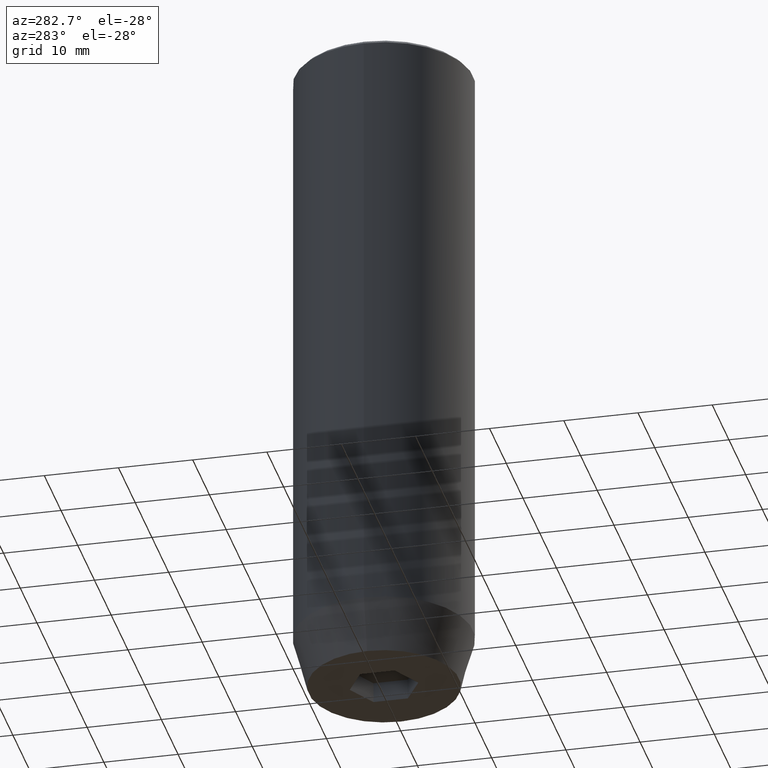
[diagram: clean part render]
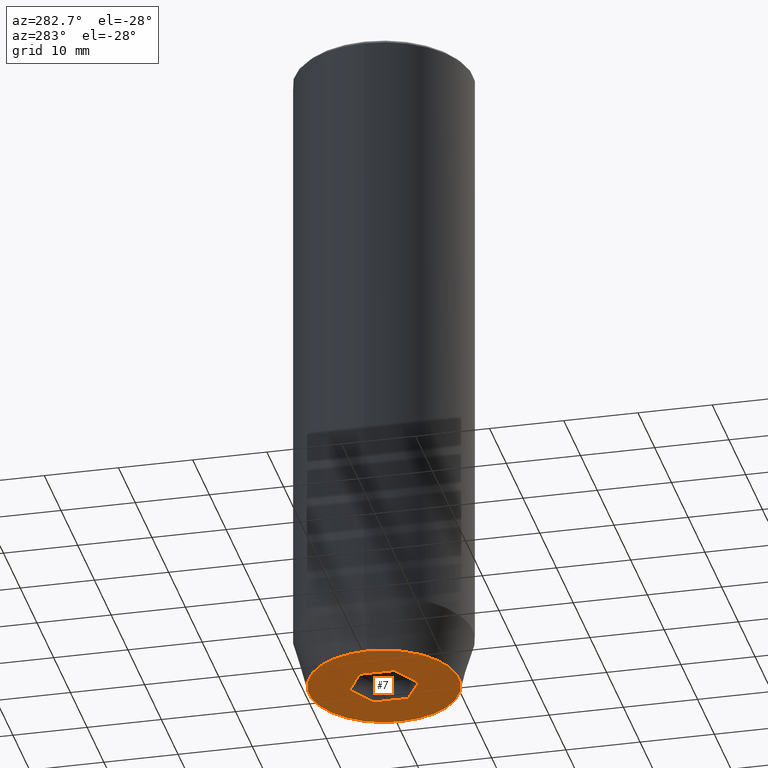
[diagram: same view with one face highlighted and labeled with its STEP entity id]
A machine part, auxiliary view. The second image highlights one B-rep face of the part: STEP entity #7.
In plain terms, the highlighted planar face has unit normal (0, 0, -1).
Its self-contained STEP definition (entity closure, byte-faithful):
#7 = ADVANCED_FACE ( 'NONE', ( #328, #155 ), #246, .T. ) ;
#10 = VECTOR ( 'NONE', #115, 1000.000000000000114 ) ;
#13 = EDGE_CURVE ( 'NONE', #583, #310, #120, .T. ) ;
#15 = CARTESIAN_POINT ( 'NONE',  ( 4.000000000000000000, 0.000000000000000000, -90.00000000000000000 ) ) ;
#18 = CIRCLE ( 'NONE', #284, 10.12435565298213547 ) ;
#20 = CARTESIAN_POINT ( 'NONE',  ( 0.000000000000000000, 10.12435565298213547, -90.00000000000000000 ) ) ;
#25 = DIRECTION ( 'NONE',  ( -1.000000000000000000, 0.000000000000000000, -0.000000000000000000 ) ) ;
#28 = CARTESIAN_POINT ( 'NONE',  ( -10.12435565298213547, 1.354726066681111050E-15, -90.00000000000000000 ) ) ;
#39 = EDGE_LOOP ( 'NONE', ( #526, #498, #96, #42, #451, #587 ) ) ;
#42 = ORIENTED_EDGE ( 'NONE', *, *, #46, .F. ) ;
#43 = CIRCLE ( 'NONE', #317, 10.12435565298213547 ) ;
#46 = EDGE_CURVE ( 'NONE', #310, #357, #335, .T. ) ;
#67 = CARTESIAN_POINT ( 'NONE',  ( 0.000000000000000000, 0.000000000000000000, -90.00000000000000000 ) ) ;
#69 = VECTOR ( 'NONE', #519, 1000.000000000000000 ) ;
#95 = CARTESIAN_POINT ( 'NONE',  ( 4.000000000000000000, 2.309401076758503368, -90.00000000000000000 ) ) ;
#96 = ORIENTED_EDGE ( 'NONE', *, *, #563, .F. ) ;
#102 = VERTEX_POINT ( 'NONE', #244 ) ;
#115 = DIRECTION ( 'NONE',  ( -0.8660254037844384856, -0.5000000000000002220, 0.000000000000000000 ) ) ;
#120 = LINE ( 'NONE', #15, #69 ) ;
#142 = VECTOR ( 'NONE', #483, 1000.000000000000000 ) ;
#153 = AXIS2_PLACEMENT_3D ( 'NONE', #20, #564, #25 ) ;
#155 = FACE_OUTER_BOUND ( 'NONE', #518, .T. ) ;
#156 = EDGE_CURVE ( 'NONE', #273, #478, #585, .T. ) ;
#161 = DIRECTION ( 'NONE',  ( 0.8660254037844387076, 0.5000000000000001110, 0.000000000000000000 ) ) ;
#174 = DIRECTION ( 'NONE',  ( 1.000000000000000000, 0.000000000000000000, 0.000000000000000000 ) ) ;
#180 = CARTESIAN_POINT ( 'NONE',  ( 2.000000000000000444, 3.464101615137754386, -90.00000000000000000 ) ) ;
#181 = CARTESIAN_POINT ( 'NONE',  ( -2.000000000000000888, -3.464101615137754386, -90.00000000000000000 ) ) ;
#191 = VERTEX_POINT ( 'NONE', #28 ) ;
#195 = EDGE_CURVE ( 'NONE', #102, #583, #486, .T. ) ;
#197 = CARTESIAN_POINT ( 'NONE',  ( 4.000000000000000000, -2.309401076758502480, -90.00000000000000000 ) ) ;
#202 = DIRECTION ( 'NONE',  ( -0.000000000000000000, -0.000000000000000000, 1.000000000000000000 ) ) ;
#220 = CARTESIAN_POINT ( 'NONE',  ( 0.000000000000000000, 0.000000000000000000, -90.00000000000000000 ) ) ;
#242 = VECTOR ( 'NONE', #446, 1000.000000000000114 ) ;
#244 = CARTESIAN_POINT ( 'NONE',  ( 0.000000000000000000, 4.618802153517006737, -90.00000000000000000 ) ) ;
#246 = PLANE ( 'NONE',  #153 ) ;
#247 = LINE ( 'NONE', #388, #343 ) ;
#255 = CARTESIAN_POINT ( 'NONE',  ( 10.12435565298213547, 0.000000000000000000, -90.00000000000000000 ) ) ;
#263 = CARTESIAN_POINT ( 'NONE',  ( -4.000000000000000000, -2.309401076758503368, -90.00000000000000000 ) ) ;
#273 = VERTEX_POINT ( 'NONE', #263 ) ;
#276 = EDGE_CURVE ( 'NONE', #569, #191, #18, .T. ) ;
#284 = AXIS2_PLACEMENT_3D ( 'NONE', #220, #398, #174 ) ;
#308 = DIRECTION ( 'NONE',  ( 0.000000000000000000, 1.000000000000000000, 0.000000000000000000 ) ) ;
#309 = CARTESIAN_POINT ( 'NONE',  ( -4.000000000000000000, 2.309401076758503368, -90.00000000000000000 ) ) ;
#310 = VERTEX_POINT ( 'NONE', #197 ) ;
#317 = AXIS2_PLACEMENT_3D ( 'NONE', #67, #202, #566 ) ;
#324 = EDGE_CURVE ( 'NONE', #478, #102, #247, .T. ) ;
#328 = FACE_BOUND ( 'NONE', #39, .T. ) ;
#335 = LINE ( 'NONE', #560, #10 ) ;
#343 = VECTOR ( 'NONE', #161, 999.9999999999998863 ) ;
#346 = CARTESIAN_POINT ( 'NONE',  ( -4.000000000000000000, 0.000000000000000000, -90.00000000000000000 ) ) ;
#357 = VERTEX_POINT ( 'NONE', #479 ) ;
#381 = EDGE_CURVE ( 'NONE', #191, #569, #43, .T. ) ;
#388 = CARTESIAN_POINT ( 'NONE',  ( -2.000000000000000000, 3.464101615137754830, -90.00000000000000000 ) ) ;
#398 = DIRECTION ( 'NONE',  ( -0.000000000000000000, -0.000000000000000000, 1.000000000000000000 ) ) ;
#446 = DIRECTION ( 'NONE',  ( -0.8660254037844384856, 0.5000000000000002220, 0.000000000000000000 ) ) ;
#451 = ORIENTED_EDGE ( 'NONE', *, *, #13, .F. ) ;
#459 = VECTOR ( 'NONE', #308, 1000.000000000000000 ) ;
#477 = ORIENTED_EDGE ( 'NONE', *, *, #381, .F. ) ;
#478 = VERTEX_POINT ( 'NONE', #309 ) ;
#479 = CARTESIAN_POINT ( 'NONE',  ( 4.336808689942017736E-16, -4.618802153517006737, -90.00000000000000000 ) ) ;
#483 = DIRECTION ( 'NONE',  ( 0.8660254037844385966, -0.5000000000000001110, 0.000000000000000000 ) ) ;
#486 = LINE ( 'NONE', #180, #142 ) ;
#487 = LINE ( 'NONE', #181, #242 ) ;
#498 = ORIENTED_EDGE ( 'NONE', *, *, #156, .F. ) ;
#518 = EDGE_LOOP ( 'NONE', ( #576, #477 ) ) ;
#519 = DIRECTION ( 'NONE',  ( 0.000000000000000000, -1.000000000000000000, 0.000000000000000000 ) ) ;
#526 = ORIENTED_EDGE ( 'NONE', *, *, #324, .F. ) ;
#560 = CARTESIAN_POINT ( 'NONE',  ( 2.000000000000000888, -3.464101615137754386, -90.00000000000000000 ) ) ;
#563 = EDGE_CURVE ( 'NONE', #357, #273, #487, .T. ) ;
#564 = DIRECTION ( 'NONE',  ( 0.000000000000000000, 0.000000000000000000, -1.000000000000000000 ) ) ;
#566 = DIRECTION ( 'NONE',  ( 1.000000000000000000, 0.000000000000000000, 0.000000000000000000 ) ) ;
#569 = VERTEX_POINT ( 'NONE', #255 ) ;
#576 = ORIENTED_EDGE ( 'NONE', *, *, #276, .F. ) ;
#583 = VERTEX_POINT ( 'NONE', #95 ) ;
#585 = LINE ( 'NONE', #346, #459 ) ;
#587 = ORIENTED_EDGE ( 'NONE', *, *, #195, .F. ) ;